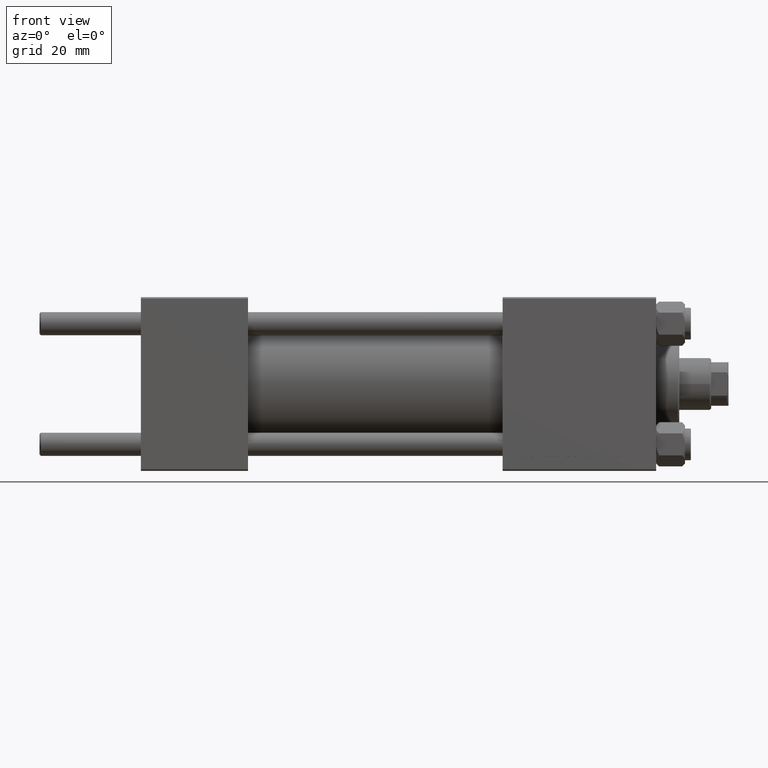
[diagram: clean part render]
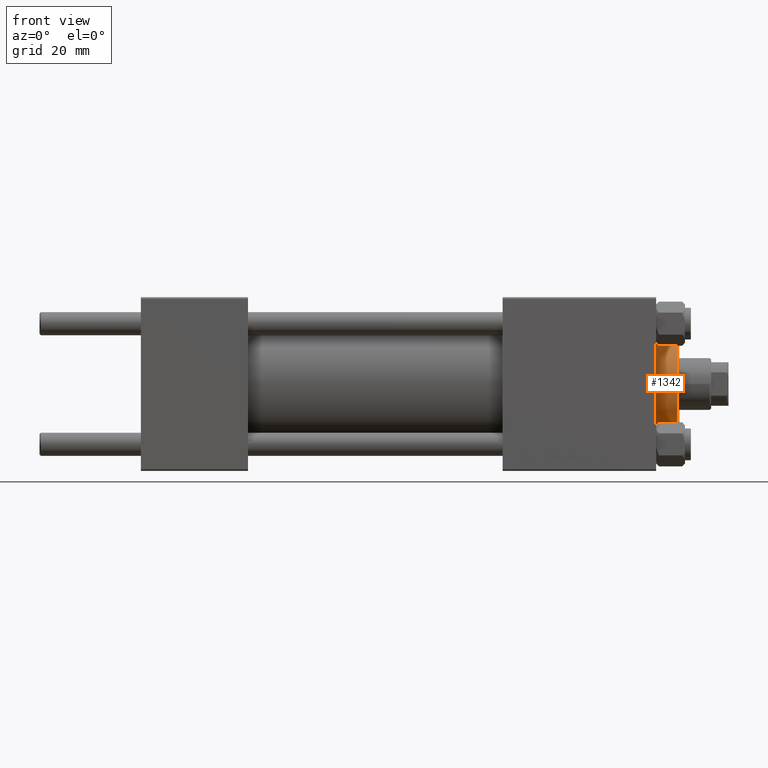
[diagram: same view with one face highlighted and labeled with its STEP entity id]
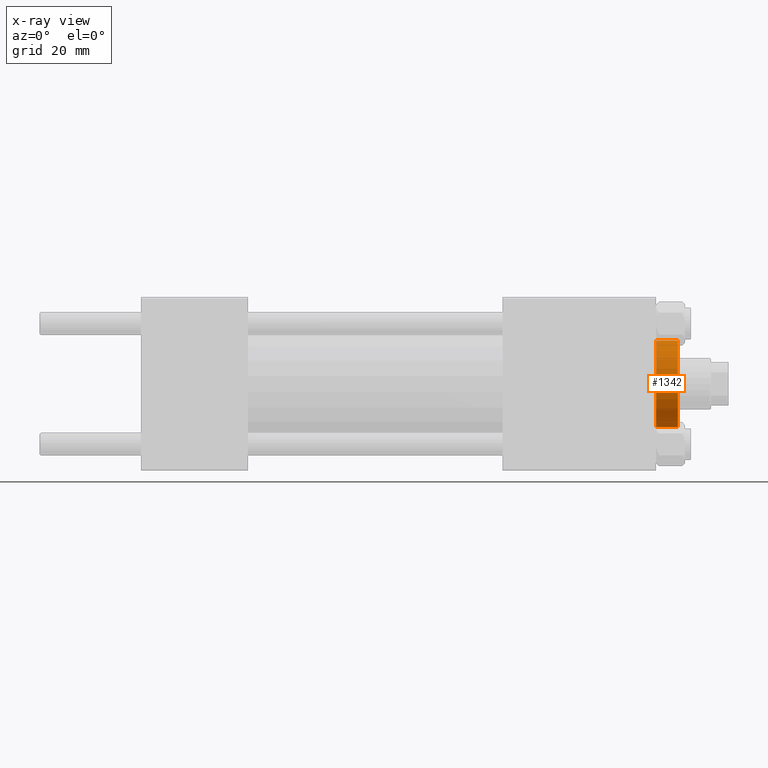
[diagram: x-ray of the same camera — body ghosted, the highlighted face saturated]
A machine part, front view. The second image highlights one B-rep face of the part: STEP entity #1342.
The next image is the same camera in x-ray: the body ghosted, the highlighted face saturated — about 0% of this face is hidden behind the body in this view.
In plain terms, the highlighted cylindrical surface (partial cylindrical patch) has radius 15 mm, axis along (-1, -0, 0).
Its self-contained STEP definition (entity closure, byte-faithful):
#1342 = ADVANCED_FACE ( 'NONE', ( #47306 ), #12750, .T. ) ;
#3716 = EDGE_CURVE ( 'NONE', #38973, #29591, #11201, .T. ) ;
#8300 = CARTESIAN_POINT ( 'NONE',  ( -15.00000000000000000, 0.000000000000000000, 36.69999999999999574 ) ) ;
#8965 = DIRECTION ( 'NONE',  ( -1.000000000000000000, 0.000000000000000000, 0.000000000000000000 ) ) ;
#11201 = LINE ( 'NONE', #19015, #12358 ) ;
#11673 = DIRECTION ( 'NONE',  ( 1.000000000000000000, 0.000000000000000000, 0.000000000000000000 ) ) ;
#12081 = DIRECTION ( 'NONE',  ( -0.000000000000000000, -0.000000000000000000, -1.000000000000000000 ) ) ;
#12358 = VECTOR ( 'NONE', #34403, 1000.000000000000000 ) ;
#12735 = CARTESIAN_POINT ( 'NONE',  ( -15.00000000000000000, 0.000000000000000000, 28.69999999999999929 ) ) ;
#12750 = CYLINDRICAL_SURFACE ( 'NONE', #34010, 15.00000000000000000 ) ;
#14098 = CARTESIAN_POINT ( 'NONE',  ( -15.00000000000000000, 0.000000000000000000, 36.20000000000000284 ) ) ;
#14142 = VERTEX_POINT ( 'NONE', #12735 ) ;
#16680 = ORIENTED_EDGE ( 'NONE', *, *, #19702, .T. ) ;
#17875 = VERTEX_POINT ( 'NONE', #14098 ) ;
#19015 = CARTESIAN_POINT ( 'NONE',  ( 15.00000000000000000, 1.836970198721029589E-15, 36.69999999999999574 ) ) ;
#19269 = VECTOR ( 'NONE', #12081, 1000.000000000000000 ) ;
#19702 = EDGE_CURVE ( 'NONE', #17875, #14142, #31245, .T. ) ;
#19987 = ORIENTED_EDGE ( 'NONE', *, *, #21163, .T. ) ;
#19996 = DIRECTION ( 'NONE',  ( 0.000000000000000000, 0.000000000000000000, -1.000000000000000000 ) ) ;
#20044 = ORIENTED_EDGE ( 'NONE', *, *, #32524, .T. ) ;
#20715 = AXIS2_PLACEMENT_3D ( 'NONE', #43191, #19996, #11673 ) ;
#21067 = CARTESIAN_POINT ( 'NONE',  ( 15.00000000000000000, 1.836970198721029589E-15, 28.69999999999999929 ) ) ;
#21163 = EDGE_CURVE ( 'NONE', #14142, #29591, #32575, .T. ) ;
#23730 = AXIS2_PLACEMENT_3D ( 'NONE', #38907, #24283, #28065 ) ;
#24283 = DIRECTION ( 'NONE',  ( 0.000000000000000000, 0.000000000000000000, 1.000000000000000000 ) ) ;
#28065 = DIRECTION ( 'NONE',  ( 1.000000000000000000, 0.000000000000000000, 0.000000000000000000 ) ) ;
#28136 = CARTESIAN_POINT ( 'NONE',  ( 0.000000000000000000, 0.000000000000000000, 36.69999999999999574 ) ) ;
#29591 = VERTEX_POINT ( 'NONE', #21067 ) ;
#30678 = EDGE_LOOP ( 'NONE', ( #32262, #20044, #16680, #19987 ) ) ;
#31245 = LINE ( 'NONE', #8300, #19269 ) ;
#32262 = ORIENTED_EDGE ( 'NONE', *, *, #3716, .F. ) ;
#32524 = EDGE_CURVE ( 'NONE', #38973, #17875, #38423, .T. ) ;
#32575 = CIRCLE ( 'NONE', #23730, 15.00000000000000000 ) ;
#34010 = AXIS2_PLACEMENT_3D ( 'NONE', #28136, #43510, #8965 ) ;
#34403 = DIRECTION ( 'NONE',  ( -0.000000000000000000, -0.000000000000000000, -1.000000000000000000 ) ) ;
#38423 = CIRCLE ( 'NONE', #20715, 15.00000000000000000 ) ;
#38907 = CARTESIAN_POINT ( 'NONE',  ( 0.000000000000000000, 0.000000000000000000, 28.69999999999999929 ) ) ;
#38973 = VERTEX_POINT ( 'NONE', #49830 ) ;
#43191 = CARTESIAN_POINT ( 'NONE',  ( 0.000000000000000000, 0.000000000000000000, 36.20000000000000284 ) ) ;
#43510 = DIRECTION ( 'NONE',  ( -0.000000000000000000, -0.000000000000000000, -1.000000000000000000 ) ) ;
#47306 = FACE_OUTER_BOUND ( 'NONE', #30678, .T. ) ;
#49830 = CARTESIAN_POINT ( 'NONE',  ( 15.00000000000000000, 1.836970198721029589E-15, 36.20000000000000284 ) ) ;